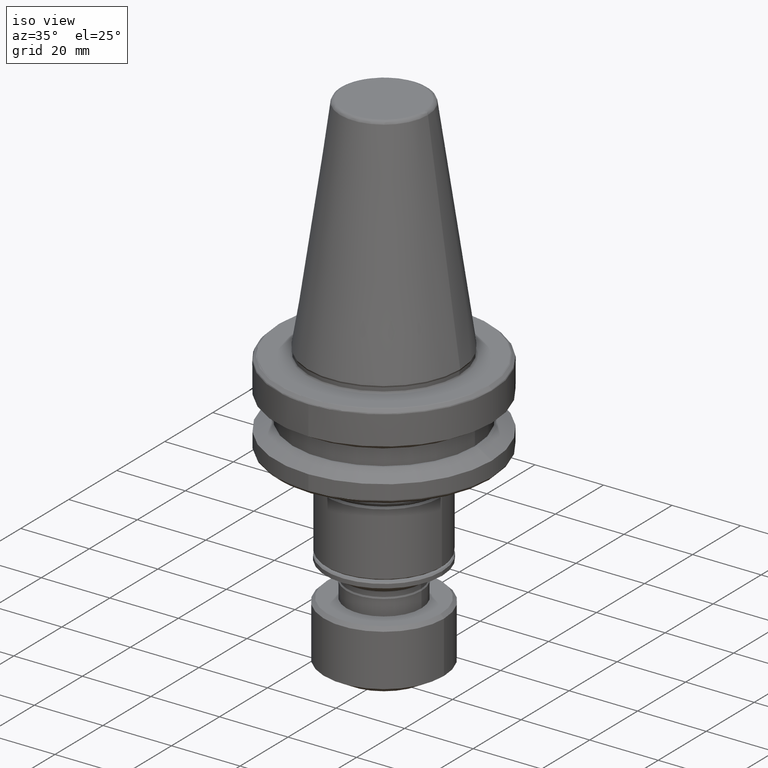
[diagram: clean part render]
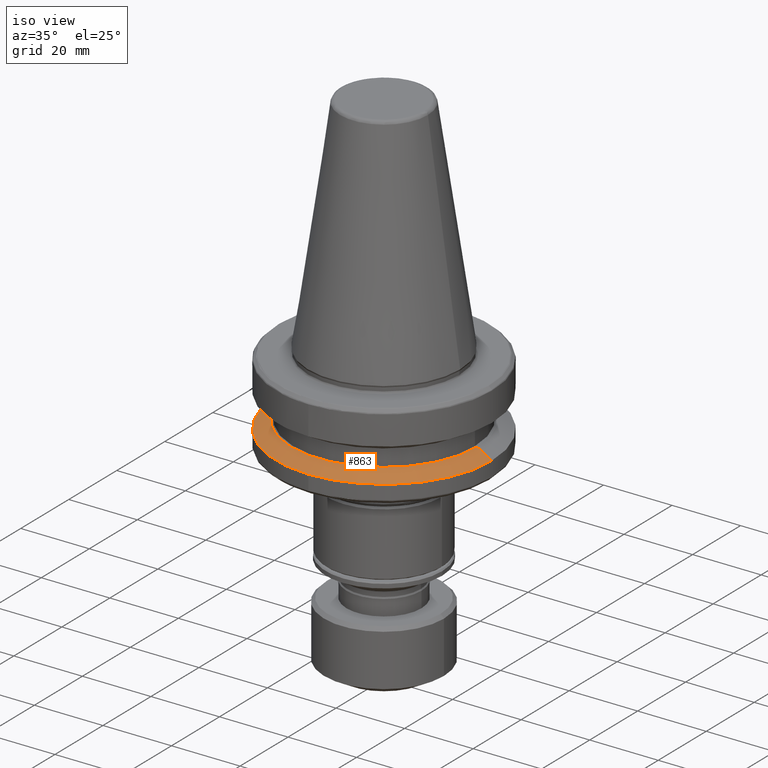
[diagram: same view with one face highlighted and labeled with its STEP entity id]
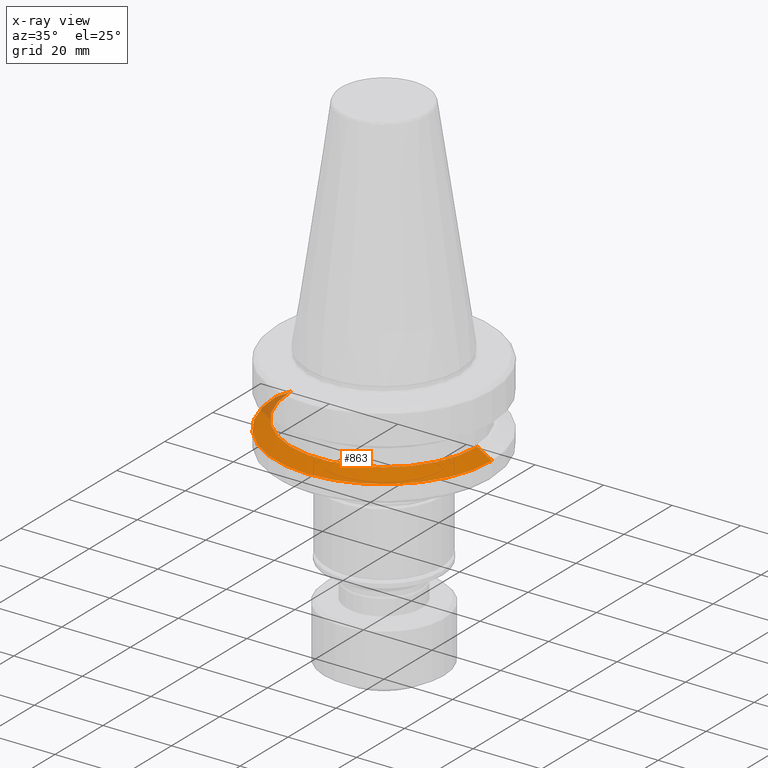
[diagram: x-ray of the same camera — body ghosted, the highlighted face saturated]
A machine part, iso view. The second image highlights one B-rep face of the part: STEP entity #863.
The next image is the same camera in x-ray: the body ghosted, the highlighted face saturated — about 4% of this face is hidden behind the body in this view.
In plain terms, the highlighted conical surface has half-angle 60 deg.
Its self-contained STEP definition (entity closure, byte-faithful):
#86 = VERTEX_POINT ( 'NONE', #3593 ) ;
#155 = AXIS2_PLACEMENT_3D ( 'NONE', #3077, #4289, #4083 ) ;
#172 = DIRECTION ( 'NONE',  ( -1.000000000000000000, 0.0000000000000000000, 0.0000000000000000000 ) ) ;
#244 = EDGE_CURVE ( 'NONE', #86, #4232, #3158, .T. ) ;
#354 = ORIENTED_EDGE ( 'NONE', *, *, #566, .F. ) ;
#459 = VECTOR ( 'NONE', #2910, 1000.000000000000000 ) ;
#566 = EDGE_CURVE ( 'NONE', #3454, #86, #842, .T. ) ;
#611 = AXIS2_PLACEMENT_3D ( 'NONE', #4148, #2162, #172 ) ;
#836 = CARTESIAN_POINT ( 'NONE',  ( -31.50000000000000000, 0.0000000000000000000, -21.57867223183167100 ) ) ;
#842 = LINE ( 'NONE', #2861, #1510 ) ;
#857 = DIRECTION ( 'NONE',  ( 0.8660253961020090200, 1.060575229316644000E-016, -0.5000000133063582400 ) ) ;
#863 = ADVANCED_FACE ( 'NONE', ( #2883 ), #2695, .T. ) ;
#1013 = AXIS2_PLACEMENT_3D ( 'NONE', #1023, #3682, #3994 ) ;
#1023 = CARTESIAN_POINT ( 'NONE',  ( 0.0000000000000000000, 0.0000000000000000000, -19.09999999999695300 ) ) ;
#1029 = ORIENTED_EDGE ( 'NONE', *, *, #244, .F. ) ;
#1156 = EDGE_CURVE ( 'NONE', #4232, #2928, #1483, .T. ) ;
#1483 = CIRCLE ( 'NONE', #611, 31.50000000000000000 ) ;
#1510 = VECTOR ( 'NONE', #857, 1000.000000000000000 ) ;
#1543 = EDGE_CURVE ( 'NONE', #2488, #2928, #2431, .T. ) ;
#1605 = CARTESIAN_POINT ( 'NONE',  ( 0.0000000000000000000, 0.0000000000000000000, -19.09999999999695300 ) ) ;
#1946 = DIRECTION ( 'NONE',  ( -1.000000000000000000, 0.0000000000000000000, 0.0000000000000000000 ) ) ;
#2162 = DIRECTION ( 'NONE',  ( -0.0000000000000000000, -0.0000000000000000000, -1.000000000000000000 ) ) ;
#2244 = AXIS2_PLACEMENT_3D ( 'NONE', #1605, #3926, #1946 ) ;
#2429 = ORIENTED_EDGE ( 'NONE', *, *, #3693, .T. ) ;
#2431 = LINE ( 'NONE', #3857, #459 ) ;
#2467 = ORIENTED_EDGE ( 'NONE', *, *, #1543, .T. ) ;
#2488 = VERTEX_POINT ( 'NONE', #3186 ) ;
#2695 = CONICAL_SURFACE ( 'NONE', #1013, 27.20681391148991700, 1.047197535831738700 ) ;
#2703 = CARTESIAN_POINT ( 'NONE',  ( 0.0000000000000000000, -31.50000000000000000, -21.57867223183167100 ) ) ;
#2861 = CARTESIAN_POINT ( 'NONE',  ( 27.20681391148991700, 3.331873757170380700E-015, -19.09999999999695300 ) ) ;
#2883 = FACE_OUTER_BOUND ( 'NONE', #3661, .T. ) ;
#2910 = DIRECTION ( 'NONE',  ( -0.8660253961020090200, 0.0000000000000000000, -0.5000000133063582400 ) ) ;
#2928 = VERTEX_POINT ( 'NONE', #836 ) ;
#3077 = CARTESIAN_POINT ( 'NONE',  ( 0.0000000000000000000, 0.0000000000000000000, -21.57867223183167100 ) ) ;
#3158 = CIRCLE ( 'NONE', #155, 31.50000000000000000 ) ;
#3186 = CARTESIAN_POINT ( 'NONE',  ( -27.20681391148991700, 0.0000000000000000000, -19.09999999999695300 ) ) ;
#3218 = CIRCLE ( 'NONE', #2244, 27.20681391148991700 ) ;
#3454 = VERTEX_POINT ( 'NONE', #3467 ) ;
#3467 = CARTESIAN_POINT ( 'NONE',  ( 27.20681391148991700, 3.594755587242271700E-015, -19.09999999999695300 ) ) ;
#3593 = CARTESIAN_POINT ( 'NONE',  ( 31.50000000000000000, 3.857637417314162700E-015, -21.57867223183167100 ) ) ;
#3661 = EDGE_LOOP ( 'NONE', ( #354, #2429, #2467, #3930, #1029 ) ) ;
#3682 = DIRECTION ( 'NONE',  ( -0.0000000000000000000, -0.0000000000000000000, -1.000000000000000000 ) ) ;
#3693 = EDGE_CURVE ( 'NONE', #3454, #2488, #3218, .T. ) ;
#3857 = CARTESIAN_POINT ( 'NONE',  ( -27.20681391148991700, 0.0000000000000000000, -19.09999999999695300 ) ) ;
#3926 = DIRECTION ( 'NONE',  ( -0.0000000000000000000, -0.0000000000000000000, -1.000000000000000000 ) ) ;
#3930 = ORIENTED_EDGE ( 'NONE', *, *, #1156, .F. ) ;
#3994 = DIRECTION ( 'NONE',  ( -1.000000000000000000, 0.0000000000000000000, 0.0000000000000000000 ) ) ;
#4083 = DIRECTION ( 'NONE',  ( -1.000000000000000000, 0.0000000000000000000, 0.0000000000000000000 ) ) ;
#4148 = CARTESIAN_POINT ( 'NONE',  ( 0.0000000000000000000, 0.0000000000000000000, -21.57867223183167100 ) ) ;
#4232 = VERTEX_POINT ( 'NONE', #2703 ) ;
#4289 = DIRECTION ( 'NONE',  ( -0.0000000000000000000, -0.0000000000000000000, -1.000000000000000000 ) ) ;